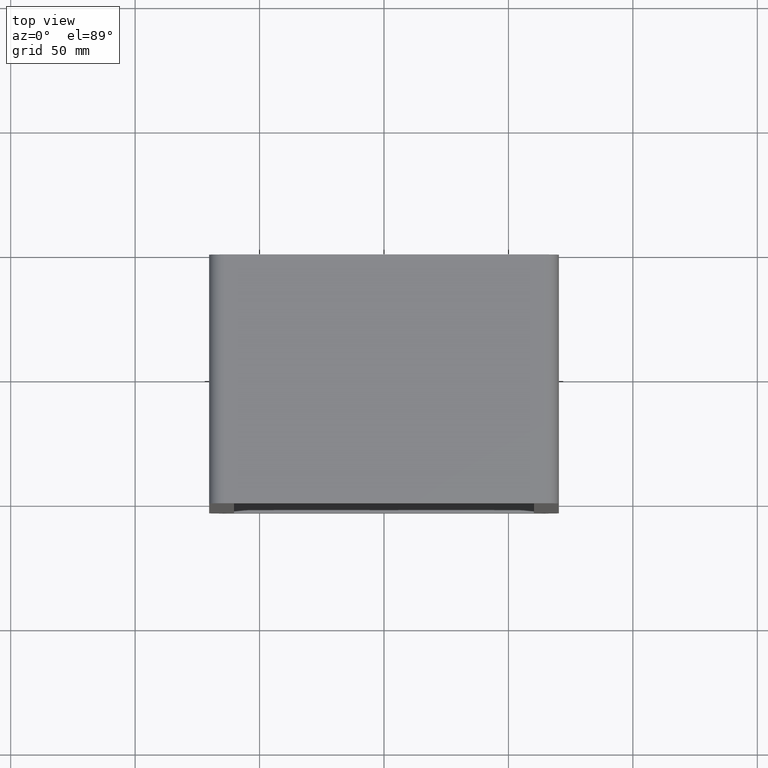
[diagram: clean part render]
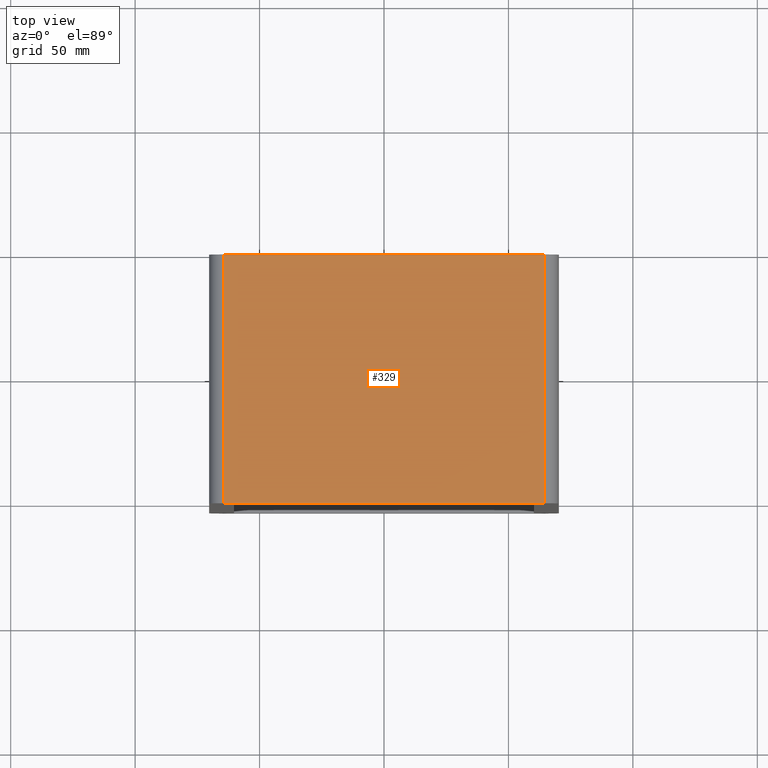
[diagram: same view with one face highlighted and labeled with its STEP entity id]
A machine part, top view. The second image highlights one B-rep face of the part: STEP entity #329.
In plain terms, the highlighted planar face has unit normal (0, 0, 1).
Its self-contained STEP definition (entity closure, byte-faithful):
#207=CARTESIAN_POINT('',(64.25,-3.0,118.99999999999999));
#208=VERTEX_POINT('',#207);
#216=CARTESIAN_POINT('',(-64.25,-3.0,118.99999999999999));
#217=VERTEX_POINT('',#216);
#218=CARTESIAN_POINT('',(64.25,-3.0,118.99999999999999));
#219=DIRECTION('',(-1.0,0.0,0.0));
#220=VECTOR('',#219,128.5);
#221=LINE('',#218,#220);
#222=EDGE_CURVE('',#208,#217,#221,.T.);
#287=CARTESIAN_POINT('',(64.25,97.0,118.99999999999999));
#288=VERTEX_POINT('',#287);
#296=CARTESIAN_POINT('',(64.25,-3.0,118.99999999999999));
#297=DIRECTION('',(0.0,1.0,0.0));
#298=VECTOR('',#297,100.0);
#299=LINE('',#296,#298);
#300=EDGE_CURVE('',#208,#288,#299,.T.);
#306=CARTESIAN_POINT('',(-64.25,0.0,118.99999999999999));
#307=DIRECTION('',(0.0,0.0,1.0));
#308=DIRECTION('',(1.0,0.0,0.0));
#309=AXIS2_PLACEMENT_3D('',#306,#307,#308);
#310=PLANE('',#309);
#311=ORIENTED_EDGE('',*,*,#300,.T.);
#312=CARTESIAN_POINT('',(-64.25,97.0,118.99999999999999));
#313=VERTEX_POINT('',#312);
#314=CARTESIAN_POINT('',(-64.25,97.0,118.99999999999999));
#315=DIRECTION('',(1.0,0.0,0.0));
#316=VECTOR('',#315,128.5);
#317=LINE('',#314,#316);
#318=EDGE_CURVE('',#313,#288,#317,.T.);
#319=ORIENTED_EDGE('',*,*,#318,.F.);
#320=CARTESIAN_POINT('',(-64.25,-3.0,118.99999999999999));
#321=DIRECTION('',(0.0,1.0,0.0));
#322=VECTOR('',#321,100.0);
#323=LINE('',#320,#322);
#324=EDGE_CURVE('',#217,#313,#323,.T.);
#325=ORIENTED_EDGE('',*,*,#324,.F.);
#326=ORIENTED_EDGE('',*,*,#222,.F.);
#327=EDGE_LOOP('',(#311,#319,#325,#326));
#328=FACE_OUTER_BOUND('',#327,.T.);
#329=ADVANCED_FACE('',(#328),#310,.T.);